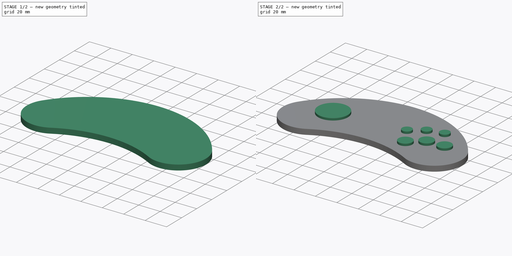
[diagram: build sequence overview — one tinted view per stage of 2, left to right]
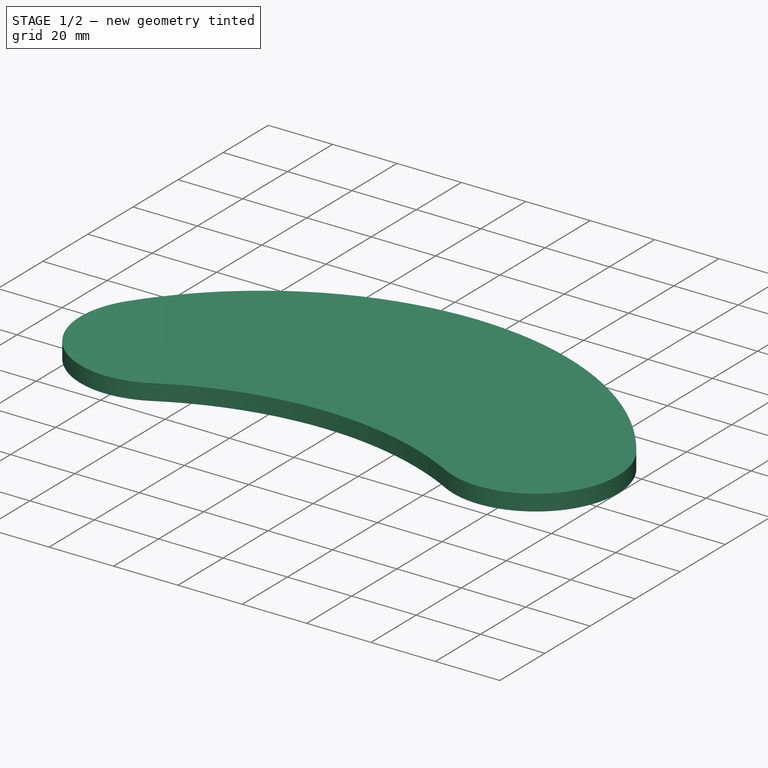
[diagram: stage 1 of 2 — iso view after this stage's code; geometry added in this stage tinted green]
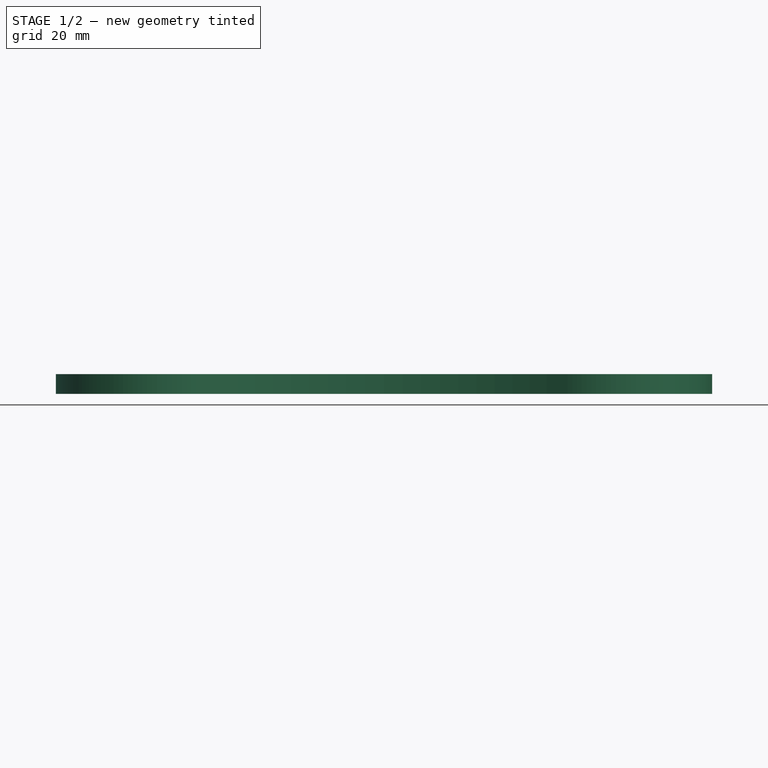
[diagram: stage 1 of 2 — front view after this stage's code; geometry added in this stage tinted green]
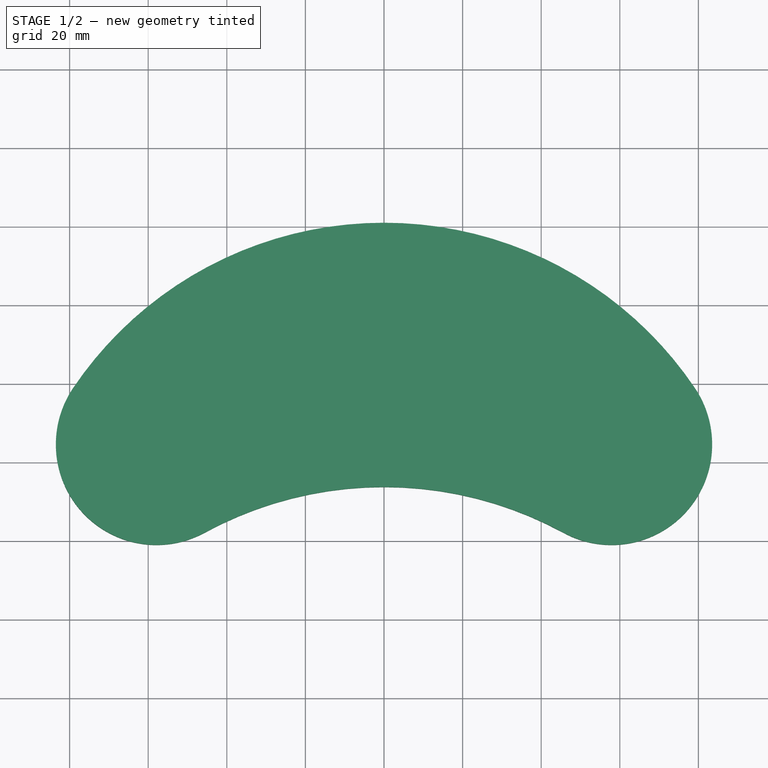
[diagram: stage 1 of 2 — top view after this stage's code; geometry added in this stage tinted green]
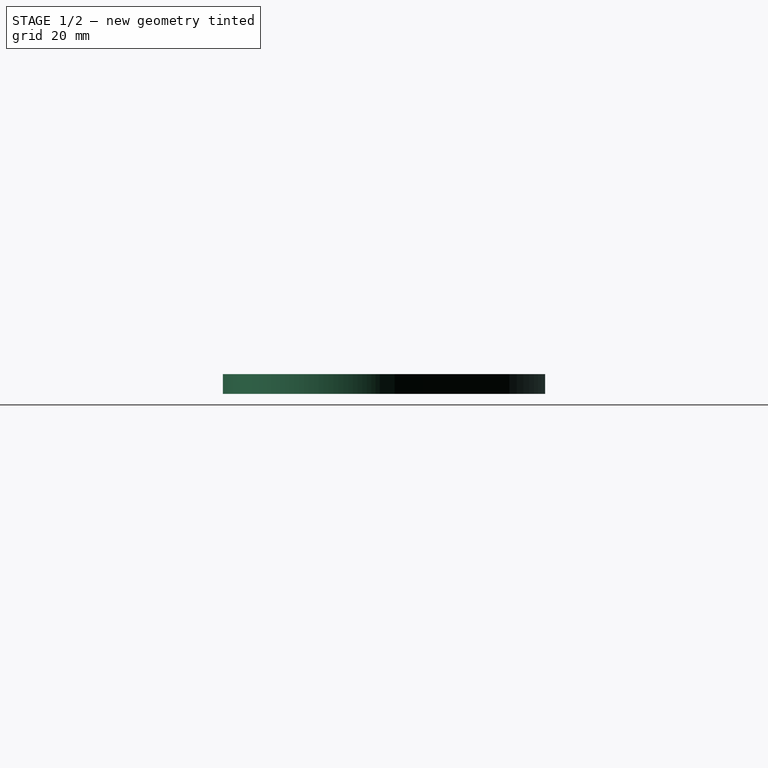
[diagram: stage 1 of 2 — right view after this stage's code; geometry added in this stage tinted green]
FCSTD DOCUMENT  (FreeCAD 0.21R33771 (Git))
Label: SEGA Icon
License: All rights reserved
LicenseURL: http://en.wikipedia.org/wiki/All_rights_reserved
objects: Sketcher::SketchObject×2, PartDesign::Pad×2, PartDesign::Body×1
note: 7 computed .brp shape members not serialized (recipe doc carries the construction recipe); baked Part::Feature solids carry a one-line shape summary decoded from their .brp

FEATURE [Sketcher::SketchObject] Sketch
  FullyConstrained = true
  MapMode = 5
  Support = -> [XY_Plane]
  sketch-geometry (12):
    g0: LineSegment StartX=-83.5 StartY=-41 StartZ=0 EndX=-83.5 EndY=41 EndZ=0
    g1: LineSegment StartX=-83.5 StartY=41 StartZ=0 EndX=83.5 EndY=41 EndZ=0
    g2: LineSegment StartX=83.5 StartY=41 StartZ=0 EndX=83.5 EndY=-41 EndZ=0
    g3: LineSegment StartX=83.5 StartY=-41 StartZ=0 EndX=-83.5 EndY=-41 EndZ=0
    g4: GeomPoint X=0 Y=0 Z=0
    g5: Circle CenterX=-57.9009 CenterY=-15.4009 CenterZ=0 NormalX=0 NormalY=0 NormalZ=1 AngleXU=0 Radius=25.5991
    g6: Circle CenterX=57.9009 CenterY=-15.4009 CenterZ=0 NormalX=0 NormalY=0 NormalZ=1 AngleXU=0 Radius=25.5991
    g7: ArcOfCircle CenterX=-6e-15 CenterY=-121.671 CenterZ=0 NormalX=0 NormalY=0 NormalZ=1 AngleXU=0 Radius=95.4207 StartAngle=1.07192 EndAngle=2.06968
    g8: ArcOfCircle CenterX=-2e-15 CenterY=-54.4207 CenterZ=0 NormalX=0 NormalY=0 NormalZ=1 AngleXU=0 Radius=95.4207 StartAngle=0.592997 EndAngle=2.5486
    g9: LineSegment StartX=-6e-15 StartY=-26.25 StartZ=0 EndX=-6e-15 EndY=-41 EndZ=0
    g10: ArcOfCircle CenterX=-57.9009 CenterY=-15.4009 CenterZ=0 NormalX=0 NormalY=0 NormalZ=1 AngleXU=0 Radius=25.5991 StartAngle=2.5486 EndAngle=5.21127
    g11: ArcOfCircle CenterX=57.9009 CenterY=-15.4009 CenterZ=0 NormalX=0 NormalY=0 NormalZ=1 AngleXU=0 Radius=25.5991 StartAngle=4.21351 EndAngle=6.87618
  constraints (34):
    c: Coincident(g0,g1)
    c: Coincident(g1,g2)
    c: Coincident(g2,g3)
    c: Coincident(g3,g0)
    c: Horizontal(g1)
    c: Horizontal(g3)
    c: Vertical(g0)
    c: Vertical(g2)
    c: Symmetric(g1,g0,g4)
    c: Coincident(g4,g-1)
    c: Tangent(g5,g3)
    c: Tangent(g6,g3)
    c: Tangent(g6,g2)
    c: Tangent(g5,g0)
    c: Equal(g6,g5)
    c: Tangent(g8,g1)
    c: Tangent(g8,g5) = -1.5708
    c: Tangent(g8,g6) = -1.5708
    c: Tangent(g7,g6) = 1.5708
    c: Tangent(g7,g5) = 1.5708
    c: Distance(g3) = 167
    c: Distance(g2) = 82
    c: PointOnObject(g9,g7)
    c: PointOnObject(g9,g3)
    c: Vertical(g9)
    c: Distance(g9) = 14.75
    c: Equal(g8,g7)
    c: Perpendicular(g7,g9)
    c: Coincident(g10,g8)
    c: Coincident(g10,g7)
    c: Coincident(g11,g7)
    c: Coincident(g11,g8)
    c: Equal(g11,g6)
    c: Equal(g10,g5)
FEATURE [PartDesign::Pad] Pad
  Direction = (0,0,1)
  Length = 5
  Length2 = 10
  Profile = -> Sketch
  ReferenceAxis = -> Sketch [N_Axis]
  Type = 0
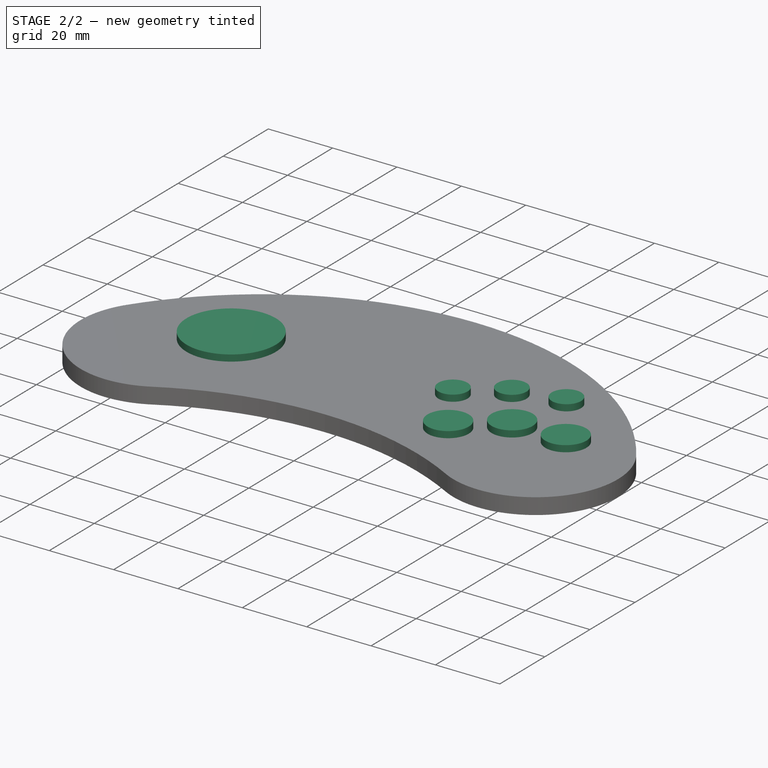
[diagram: stage 2 of 2 — iso view after this stage's code; geometry added in this stage tinted green]
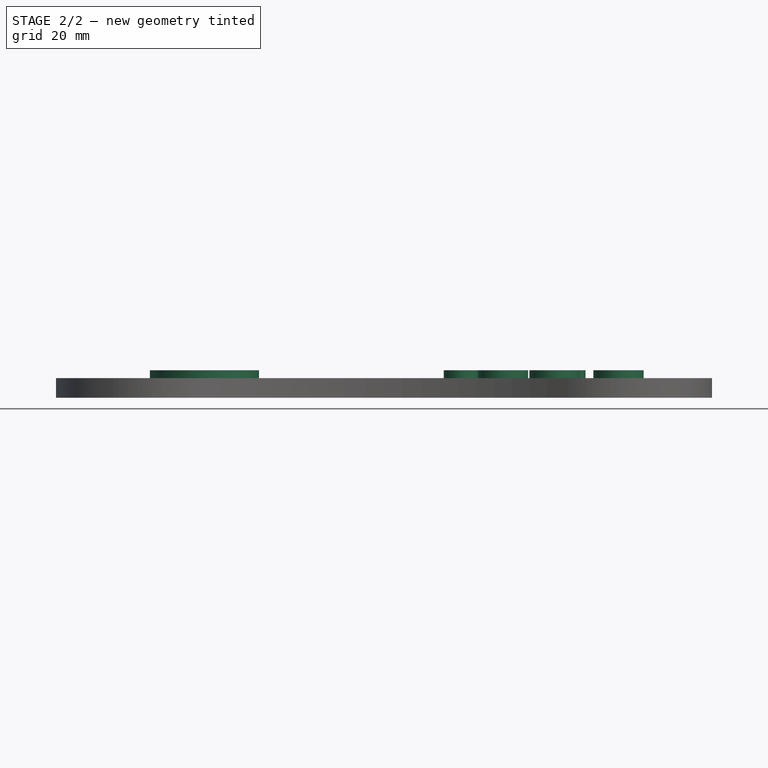
[diagram: stage 2 of 2 — front view after this stage's code; geometry added in this stage tinted green]
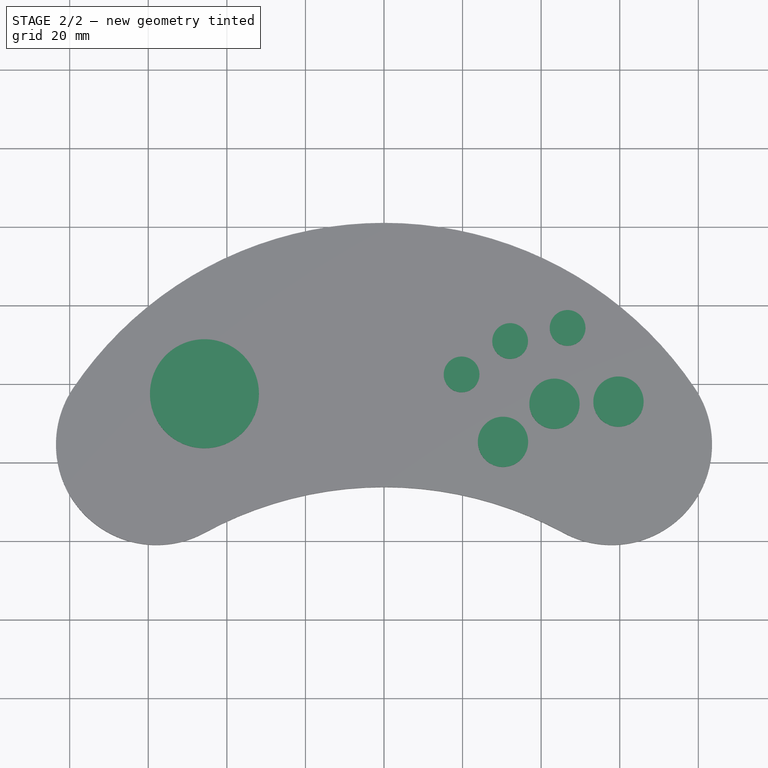
[diagram: stage 2 of 2 — top view after this stage's code; geometry added in this stage tinted green]
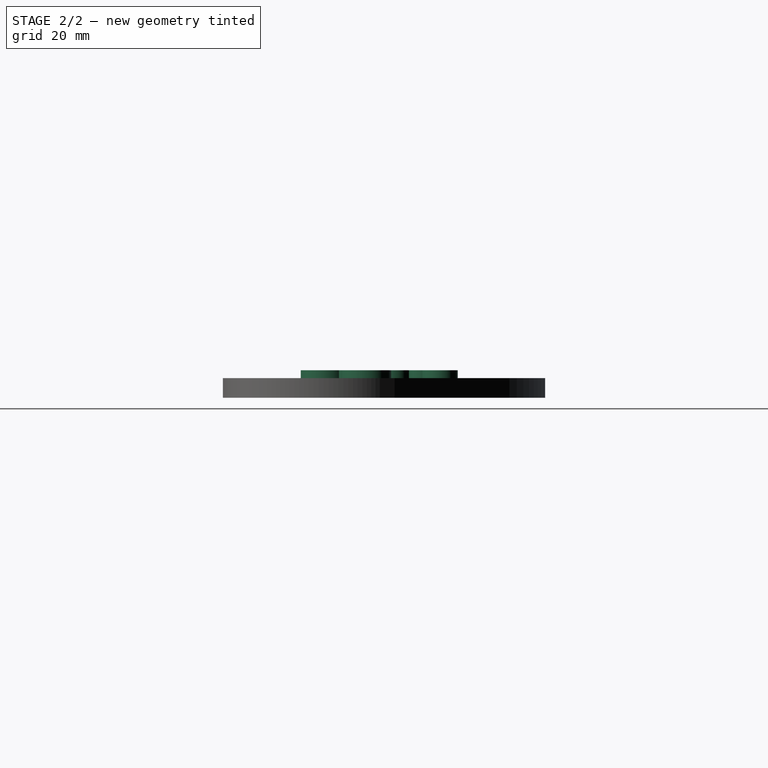
[diagram: stage 2 of 2 — right view after this stage's code; geometry added in this stage tinted green]
FEATURE [Sketcher::SketchObject] Sketch001
  ExternalGeometry = -> [Pad]
  FullyConstrained = true
  MapMode = 5
  Placement = pos=(0,0,5) rot=(0,0,1;0rad)
  Support = -> [Pad]
  sketch-geometry (22):
    g0: Circle CenterX=-45.7049 CenterY=-2.53309 CenterZ=0 NormalX=0 NormalY=0 NormalZ=1 AngleXU=0 Radius=13.875
    g1: Circle CenterX=30.286 CenterY=-14.7839 CenterZ=0 NormalX=0 NormalY=0 NormalZ=1 AngleXU=0 Radius=6.4
    g2: Circle CenterX=43.3902 CenterY=-5.09005 CenterZ=0 NormalX=0 NormalY=0 NormalZ=1 AngleXU=0 Radius=6.4
    g3: Circle CenterX=59.6809 CenterY=-4.53805 CenterZ=0 NormalX=0 NormalY=0 NormalZ=1 AngleXU=0 Radius=6.4
    g4: Circle CenterX=19.7475 CenterY=2.38425 CenterZ=0 NormalX=0 NormalY=0 NormalZ=1 AngleXU=0 Radius=4.55
    g5: Circle CenterX=32.1049 CenterY=10.8869 CenterZ=0 NormalX=0 NormalY=0 NormalZ=1 AngleXU=0 Radius=4.55
    g6: Circle CenterX=46.7287 CenterY=14.2251 CenterZ=0 NormalX=0 NormalY=0 NormalZ=1 AngleXU=0 Radius=4.55
    g7: LineSegment StartX=-45.7049 StartY=-16.4081 StartZ=0 EndX=-45.7049 EndY=-37.9081 EndZ=0
    g8: LineSegment StartX=-59.5799 StartY=-2.53309 StartZ=0 EndX=-80.0799 EndY=-2.53309 EndZ=0
    g9: LineSegment StartX=-45.7049 StartY=11.3419 StartZ=0 EndX=-45.7049 EndY=29.3419 EndZ=0
    g10: LineSegment StartX=35.4312 StartY=-10.9777 StartZ=0 EndX=38.245 EndY=-8.89621 EndZ=0
    g11: LineSegment StartX=49.7866 StartY=-4.87331 StartZ=0 EndX=53.2845 EndY=-4.75478 EndZ=0
    g12: LineSegment StartX=36.5408 StartY=11.8995 StartZ=0 EndX=42.2928 EndY=13.2125 EndZ=0
    g13: LineSegment StartX=23.4959 StartY=4.96339 StartZ=0 EndX=28.3564 EndY=8.30776 EndZ=0
    g14: LineSegment StartX=30.286 StartY=-21.1839 StartZ=0 EndX=30.286 EndY=-31.1839 EndZ=0
    g15: LineSegment StartX=43.3902 StartY=-11.4901 StartZ=0 EndX=43.3902 EndY=-36.4901 EndZ=0
    g16: LineSegment StartX=59.6809 StartY=-10.938 StartZ=0 EndX=59.6809 EndY=-40.938 EndZ=0
    g17: LineSegment StartX=19.7475 StartY=6.93425 StartZ=0 EndX=19.7475 EndY=38.9343 EndZ=0
    g18: LineSegment StartX=32.1049 StartY=15.4369 StartZ=0 EndX=32.1049 EndY=35.4369 EndZ=0
    g19: LineSegment StartX=46.7287 StartY=18.7751 StartZ=0 EndX=46.7287 EndY=28.7751 EndZ=0
    g20: LineSegment StartX=66.0809 StartY=-4.53805 StartZ=0 EndX=81.0809 EndY=-4.53805 EndZ=0
    g21: LineSegment StartX=51.2787 StartY=14.2251 StartZ=0 EndX=66.2787 EndY=14.2251 EndZ=0
  constraints (81):
    c: PointOnObject(g7,g0)
    c: PointOnObject(g7,g-3)
    c: PointOnObject(g8,g0)
    c: PointOnObject(g8,g-4)
    c: Horizontal(g8)
    c: Vertical(g7)
    c: Perpendicular(g0,g7)
    c: Perpendicular(g0,g8)
    c: Diameter(g0) = 27.75
    c: Distance(g8) = 20.5
    c: PointOnObject(g9,g0)
    c: PointOnObject(g9,g-4)
    c: Vertical(g9)
    c: Perpendicular(g0,g9)
    c: Distance(g9) = 18
    c: Diameter(g1) = 12.8
    c: Equal(g1,g2)
    c: Equal(g2,g3)
    c: Equal(g6,g5)
    c: Equal(g5,g4)
    c: Diameter(g6) = 9.1
    c: PointOnObject(g10,g1)
    c: PointOnObject(g10,g2)
    c: PointOnObject(g11,g2)
    c: PointOnObject(g11,g3)
    c: PointOnObject(g12,g5)
    c: PointOnObject(g12,g6)
    c: PointOnObject(g13,g4)
    c: PointOnObject(g13,g5)
    c: Perpendicular(g4,g13)
    c: Perpendicular(g5,g13)
    c: Perpendicular(g5,g12)
    c: Perpendicular(g6,g12)
    c: Perpendicular(g2,g10)
    c: Perpendicular(g1,g10)
    c: Perpendicular(g2,g11)
    c: Perpendicular(g3,g11)
    c: Distance(g10) = 3.5
    c: Equal(g10,g11)
    c: Equal(g12,g13)
    c: Distance(g13) = 5.9
    c: PointOnObject(g14,g1)
    c: PointOnObject(g14,g-3)
    c: Vertical(g14)
    c: Perpendicular(g1,g14)
    c: Distance(g14) = 10
    c: PointOnObject(g15,g2)
    c: PointOnObject(g15,g-6)
    c: Vertical(g15)
    c: Perpendicular(g2,g15)
    c: Distance(g15) = 25
    c: PointOnObject(g16,g3)
    c: PointOnObject(g16,g-6)
    c: Vertical(g16)
    c: Perpendicular(g3,g16)
    c: Distance(g16) = 30
    c: PointOnObject(g17,g4)
    c: PointOnObject(g17,g-4)
    c: Vertical(g17)
    c: PointOnObject(g18,g5)
    c: PointOnObject(g18,g-4)
    c: Vertical(g18)
    c: PointOnObject(g19,g6)
    c: PointOnObject(g19,g-4)
    c: Vertical(g19)
    c: PointOnObject(g20,g3)
    c: PointOnObject(g20,g-6)
    c: Horizontal(g20)
    c: Perpendicular(g3,g20)
    c: PointOnObject(g21,g6)
    c: PointOnObject(g21,g-4)
    c: Horizontal(g21)
    c: Perpendicular(g6,g21)
    c: Perpendicular(g6,g19)
    c: Perpendicular(g5,g18)
    c: Perpendicular(g4,g17)
    c: Distance(g20) = 15
    c: Distance(g21) = 15
    c: Distance(g19) = 10
    c: Distance(g18) = 20
    c: Distance(g17) = 32
FEATURE [PartDesign::Pad] Pad001
  BaseFeature = -> Pad
  Direction = (0,0,1)
  Length = 2
  Length2 = 10
  Profile = -> Sketch001
  ReferenceAxis = -> Sketch001 [N_Axis]
  Type = 0
FEATURE [PartDesign::Body] Body
  Group = -> [Sketch,Pad,Sketch001,Pad001]
  Origin = -> Origin
  Tip = -> Pad001
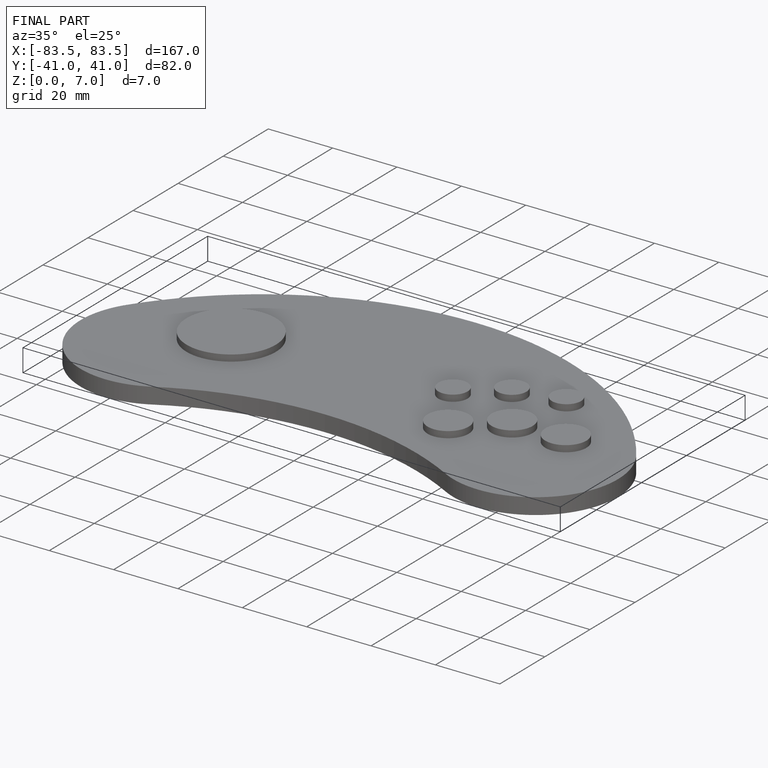
[diagram: finished part — iso view with bounding-box wireframe]
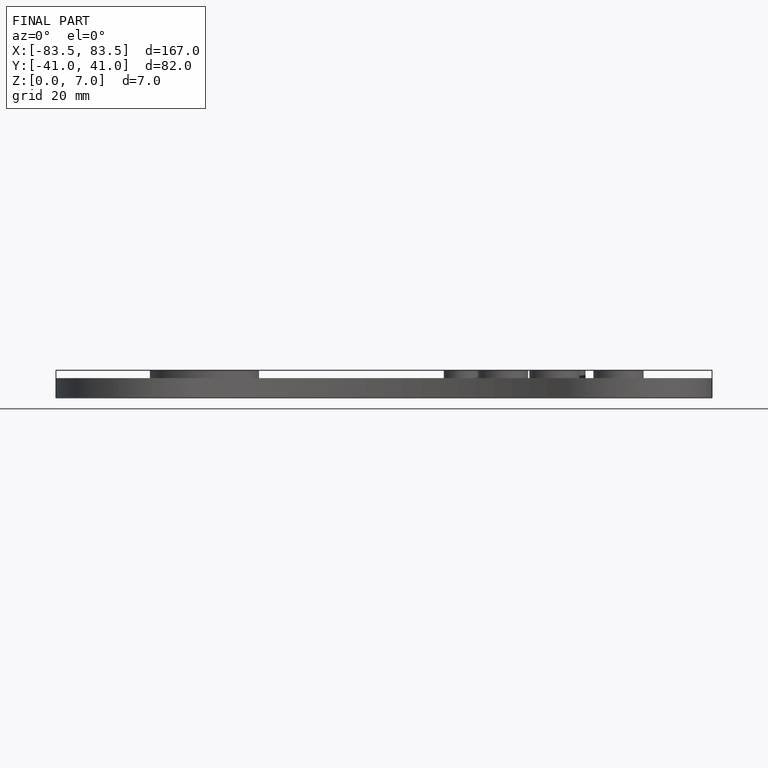
[diagram: finished part — front view with bounding-box wireframe]
